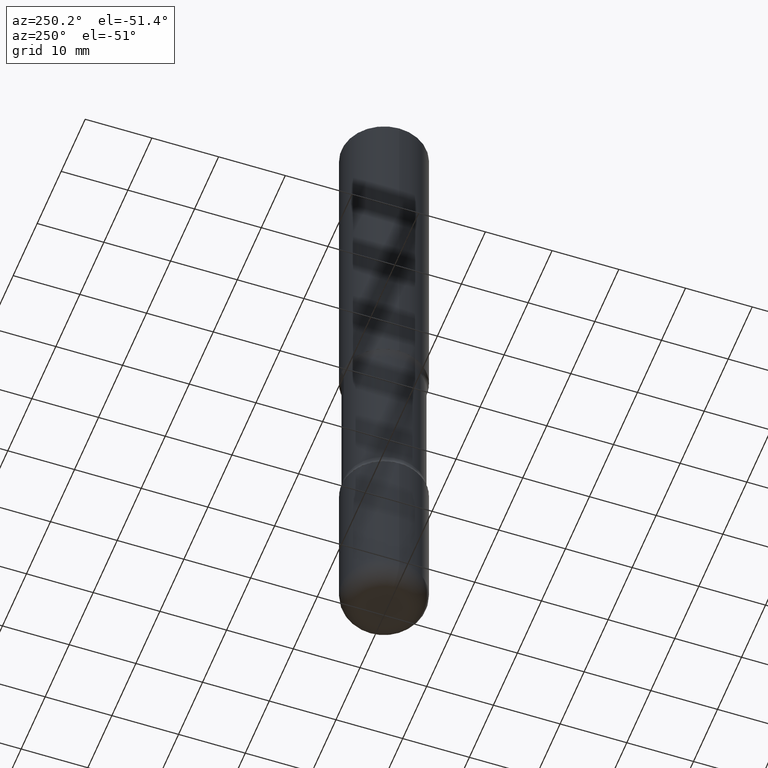
[diagram: clean part render]
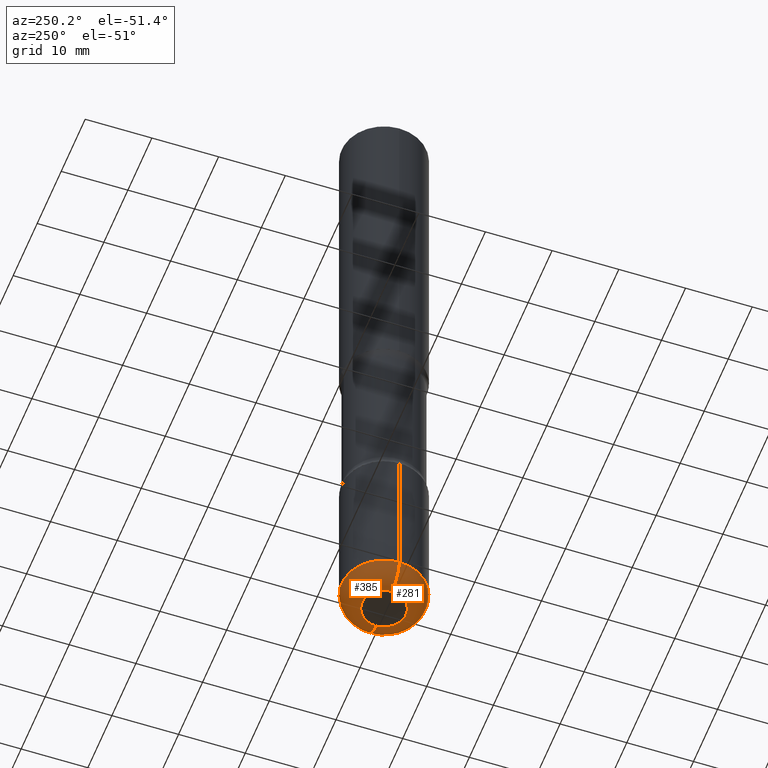
[diagram: same view with one multi-face feature highlighted, each face labeled with its STEP entity id]
A machine part, auxiliary view. The highlighted faces form ONE feature: a constant-radius fillet chain: 2 tangent blend faces with common blend radius 3.048 mm. The faces share edges in the B-rep.
Their STEP definitions:
[1] entity #385 (Torus):
#2 = EDGE_CURVE ( 'NONE', #404, #127, #257, .T. ) ;
#4 = CARTESIAN_POINT ( 'NONE',  ( 9.781875224740547508E-29, -1.396592535537258391E-14, -4.000000000000000888 ) ) ;
#7 = CARTESIAN_POINT ( 'NONE',  ( 9.488418967998331206E-29, -1.354694759471140727E-14, -3.880000000000000782 ) ) ;
#25 = DIRECTION ( 'NONE',  ( 1.000000000000000000, -6.982962677686267499E-15, 0.000000000000000000 ) ) ;
#46 = CARTESIAN_POINT ( 'NONE',  ( 0.1300000000000003375, -1.445473274281062700E-14, -3.880000000000000782 ) ) ;
#77 = CARTESIAN_POINT ( 'NONE',  ( -0.2500000000000003331, -1.177059075531115523E-14, -3.880000000000000782 ) ) ;
#85 = AXIS2_PLACEMENT_3D ( 'NONE', #477, #402, #25 ) ;
#87 = DIRECTION ( 'NONE',  ( 1.000000000000000000, -6.982962677686269077E-15, 0.000000000000000000 ) ) ;
#92 = DIRECTION ( 'NONE',  ( -2.445468806185136597E-29, 3.491481338843145583E-15, 1.000000000000000000 ) ) ;
#96 = CARTESIAN_POINT ( 'NONE',  ( -0.1300000000000003375, -1.240640527709780404E-14, -4.000000000000000888 ) ) ;
#119 = ORIENTED_EDGE ( 'NONE', *, *, #286, .F. ) ;
#127 = VERTEX_POINT ( 'NONE', #77 ) ;
#135 = DIRECTION ( 'NONE',  ( 1.000000000000000000, -6.982962677686270655E-15, 4.883557194083114583E-29 ) ) ;
#141 = CARTESIAN_POINT ( 'NONE',  ( -0.1300000000000003375, -1.262324203822327621E-14, -3.880000000000000782 ) ) ;
#175 = VERTEX_POINT ( 'NONE', #457 ) ;
#217 = DIRECTION ( 'NONE',  ( 1.000000000000000000, -6.982962677686272233E-15, 0.000000000000000000 ) ) ;
#223 = DIRECTION ( 'NONE',  ( -6.982962677686266711E-15, -1.000000000000000000, 3.491481338843145583E-15 ) ) ;
#234 = VERTEX_POINT ( 'NONE', #376 ) ;
#257 = CIRCLE ( 'NONE', #431, 0.1199999999999999262 ) ;
#258 = CIRCLE ( 'NONE', #373, 0.1199999999999999262 ) ;
#263 = FACE_OUTER_BOUND ( 'NONE', #360, .T. ) ;
#286 = EDGE_CURVE ( 'NONE', #175, #234, #258, .T. ) ;
#331 = AXIS2_PLACEMENT_3D ( 'NONE', #7, #92, #135 ) ;
#341 = CIRCLE ( 'NONE', #369, 0.1300000000000003375 ) ;
#358 = EDGE_CURVE ( 'NONE', #175, #404, #341, .T. ) ;
#360 = EDGE_LOOP ( 'NONE', ( #536, #474, #492, #119 ) ) ;
#369 = AXIS2_PLACEMENT_3D ( 'NONE', #4, #387, #87 ) ;
#373 = AXIS2_PLACEMENT_3D ( 'NONE', #46, #223, #217 ) ;
#376 = CARTESIAN_POINT ( 'NONE',  ( 0.2500000000000003331, -1.529268826413297711E-14, -3.880000000000000782 ) ) ;
#385 = ADVANCED_FACE ( 'NONE', ( #263 ), #432, .T. ) ;
#387 = DIRECTION ( 'NONE',  ( -2.445468806185136597E-29, 3.491481338843145583E-15, 1.000000000000000000 ) ) ;
#402 = DIRECTION ( 'NONE',  ( -2.445468806185136597E-29, 3.491481338843145583E-15, 1.000000000000000000 ) ) ;
#404 = VERTEX_POINT ( 'NONE', #96 ) ;
#431 = AXIS2_PLACEMENT_3D ( 'NONE', #141, #499, #537 ) ;
#432 = TOROIDAL_SURFACE ( 'NONE', #331, 0.1300000000000003375, 0.1199999999999999539 ) ;
#456 = CIRCLE ( 'NONE', #85, 0.2500000000000003886 ) ;
#457 = CARTESIAN_POINT ( 'NONE',  ( 0.1300000000000003375, -1.487371050347180047E-14, -4.000000000000000888 ) ) ;
#474 = ORIENTED_EDGE ( 'NONE', *, *, #2, .T. ) ;
#477 = CARTESIAN_POINT ( 'NONE',  ( 9.488418967998331206E-29, -1.354694759471140727E-14, -3.880000000000000782 ) ) ;
#492 = ORIENTED_EDGE ( 'NONE', *, *, #538, .F. ) ;
#499 = DIRECTION ( 'NONE',  ( 7.105427357601001859E-15, 1.000000000000000000, -3.491481338843145583E-15 ) ) ;
#536 = ORIENTED_EDGE ( 'NONE', *, *, #358, .T. ) ;
#537 = DIRECTION ( 'NONE',  ( -1.000000000000000000, 7.105427357601011325E-15, 0.000000000000000000 ) ) ;
#538 = EDGE_CURVE ( 'NONE', #234, #127, #456, .T. ) ;
[2] entity #281 (Torus):
#2 = EDGE_CURVE ( 'NONE', #404, #127, #257, .T. ) ;
#30 = EDGE_CURVE ( 'NONE', #404, #175, #302, .T. ) ;
#31 = FACE_OUTER_BOUND ( 'NONE', #67, .T. ) ;
#41 = ORIENTED_EDGE ( 'NONE', *, *, #286, .T. ) ;
#46 = CARTESIAN_POINT ( 'NONE',  ( 0.1300000000000003375, -1.445473274281062700E-14, -3.880000000000000782 ) ) ;
#55 = CARTESIAN_POINT ( 'NONE',  ( 9.488418967998331206E-29, -1.354694759471140727E-14, -3.880000000000000782 ) ) ;
#67 = EDGE_LOOP ( 'NONE', ( #437, #229, #41, #452 ) ) ;
#71 = TOROIDAL_SURFACE ( 'NONE', #213, 0.1300000000000003375, 0.1199999999999999539 ) ;
#77 = CARTESIAN_POINT ( 'NONE',  ( -0.2500000000000003331, -1.177059075531115523E-14, -3.880000000000000782 ) ) ;
#84 = DIRECTION ( 'NONE',  ( -2.445468806185136597E-29, 3.491481338843145583E-15, 1.000000000000000000 ) ) ;
#96 = CARTESIAN_POINT ( 'NONE',  ( -0.1300000000000003375, -1.240640527709780404E-14, -4.000000000000000888 ) ) ;
#127 = VERTEX_POINT ( 'NONE', #77 ) ;
#138 = DIRECTION ( 'NONE',  ( 1.000000000000000000, -6.982962677686270655E-15, 4.883557194083114583E-29 ) ) ;
#141 = CARTESIAN_POINT ( 'NONE',  ( -0.1300000000000003375, -1.262324203822327621E-14, -3.880000000000000782 ) ) ;
#175 = VERTEX_POINT ( 'NONE', #457 ) ;
#213 = AXIS2_PLACEMENT_3D ( 'NONE', #55, #84, #138 ) ;
#217 = DIRECTION ( 'NONE',  ( 1.000000000000000000, -6.982962677686272233E-15, 0.000000000000000000 ) ) ;
#223 = DIRECTION ( 'NONE',  ( -6.982962677686266711E-15, -1.000000000000000000, 3.491481338843145583E-15 ) ) ;
#229 = ORIENTED_EDGE ( 'NONE', *, *, #30, .T. ) ;
#231 = DIRECTION ( 'NONE',  ( 1.000000000000000000, -6.982962677686269077E-15, 0.000000000000000000 ) ) ;
#234 = VERTEX_POINT ( 'NONE', #376 ) ;
#235 = CARTESIAN_POINT ( 'NONE',  ( 9.781875224740547508E-29, -1.396592535537258391E-14, -4.000000000000000888 ) ) ;
#257 = CIRCLE ( 'NONE', #431, 0.1199999999999999262 ) ;
#258 = CIRCLE ( 'NONE', #373, 0.1199999999999999262 ) ;
#269 = CARTESIAN_POINT ( 'NONE',  ( 9.488418967998331206E-29, -1.354694759471140727E-14, -3.880000000000000782 ) ) ;
#278 = AXIS2_PLACEMENT_3D ( 'NONE', #269, #384, #521 ) ;
#281 = ADVANCED_FACE ( 'NONE', ( #31 ), #71, .T. ) ;
#286 = EDGE_CURVE ( 'NONE', #175, #234, #258, .T. ) ;
#302 = CIRCLE ( 'NONE', #481, 0.1300000000000003375 ) ;
#329 = EDGE_CURVE ( 'NONE', #127, #234, #482, .T. ) ;
#373 = AXIS2_PLACEMENT_3D ( 'NONE', #46, #223, #217 ) ;
#376 = CARTESIAN_POINT ( 'NONE',  ( 0.2500000000000003331, -1.529268826413297711E-14, -3.880000000000000782 ) ) ;
#384 = DIRECTION ( 'NONE',  ( -2.445468806185136597E-29, 3.491481338843145583E-15, 1.000000000000000000 ) ) ;
#404 = VERTEX_POINT ( 'NONE', #96 ) ;
#431 = AXIS2_PLACEMENT_3D ( 'NONE', #141, #499, #537 ) ;
#437 = ORIENTED_EDGE ( 'NONE', *, *, #2, .F. ) ;
#438 = DIRECTION ( 'NONE',  ( -2.445468806185136597E-29, 3.491481338843145583E-15, 1.000000000000000000 ) ) ;
#452 = ORIENTED_EDGE ( 'NONE', *, *, #329, .F. ) ;
#457 = CARTESIAN_POINT ( 'NONE',  ( 0.1300000000000003375, -1.487371050347180047E-14, -4.000000000000000888 ) ) ;
#481 = AXIS2_PLACEMENT_3D ( 'NONE', #235, #438, #231 ) ;
#482 = CIRCLE ( 'NONE', #278, 0.2500000000000003886 ) ;
#499 = DIRECTION ( 'NONE',  ( 7.105427357601001859E-15, 1.000000000000000000, -3.491481338843145583E-15 ) ) ;
#521 = DIRECTION ( 'NONE',  ( 1.000000000000000000, -6.982962677686267499E-15, 0.000000000000000000 ) ) ;
#537 = DIRECTION ( 'NONE',  ( -1.000000000000000000, 7.105427357601011325E-15, 0.000000000000000000 ) ) ;